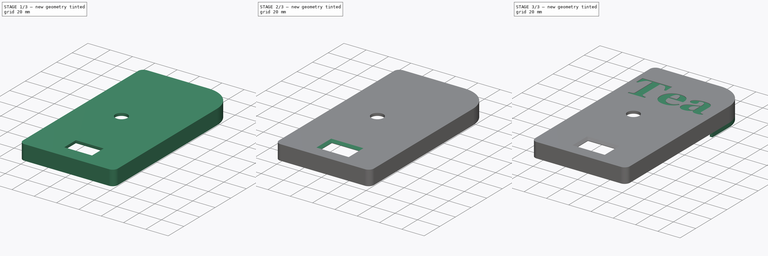
[diagram: build sequence overview — one tinted view per stage of 3, left to right]
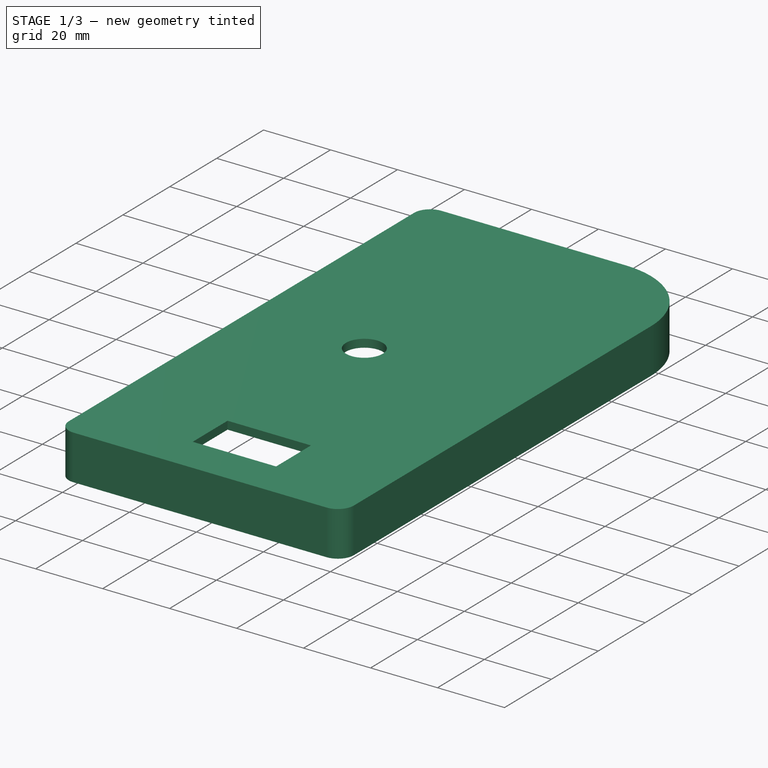
[diagram: stage 1 of 3 — iso view after this stage's code; geometry added in this stage tinted green]
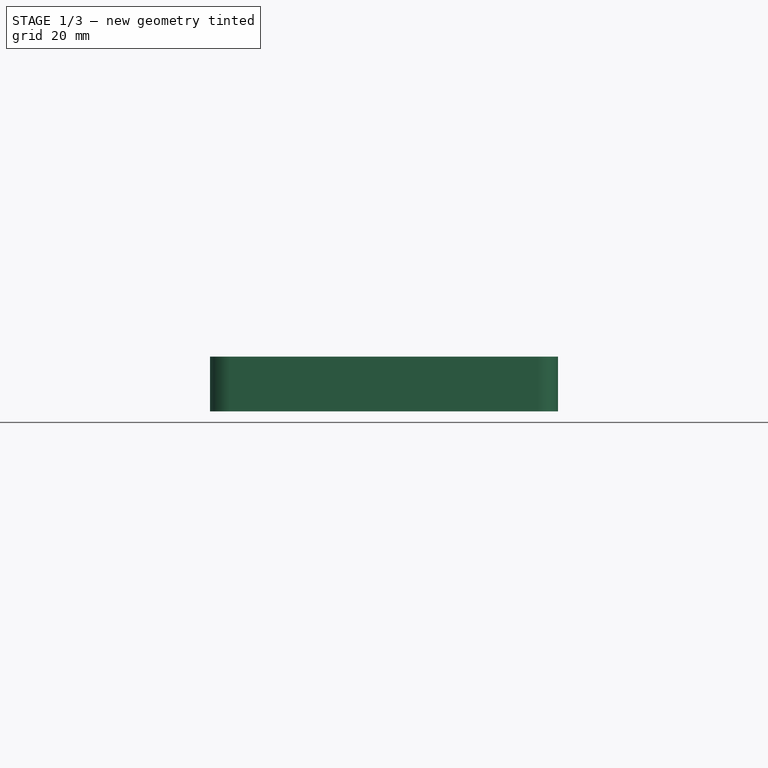
[diagram: stage 1 of 3 — front view after this stage's code; geometry added in this stage tinted green]
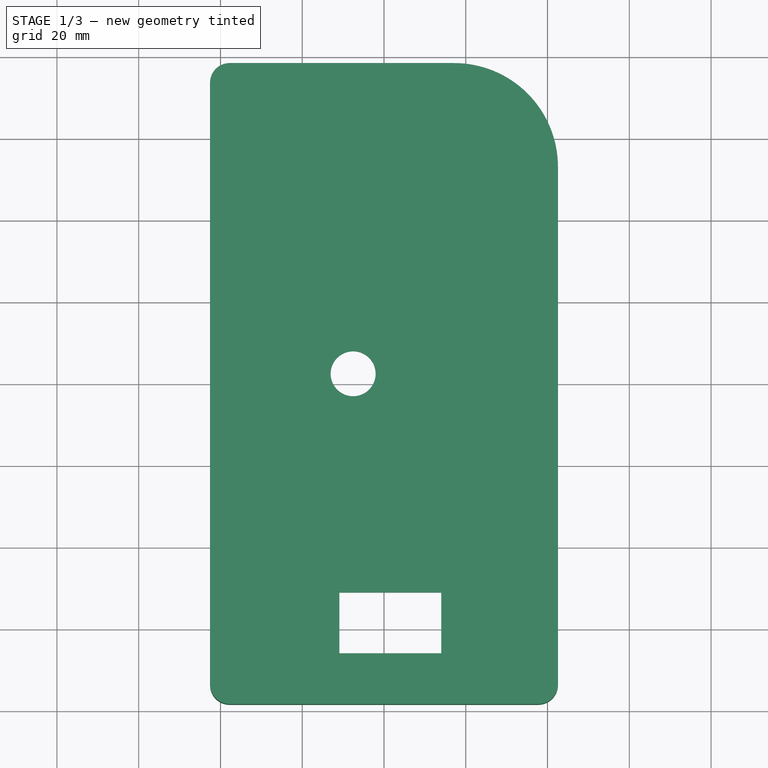
[diagram: stage 1 of 3 — top view after this stage's code; geometry added in this stage tinted green]
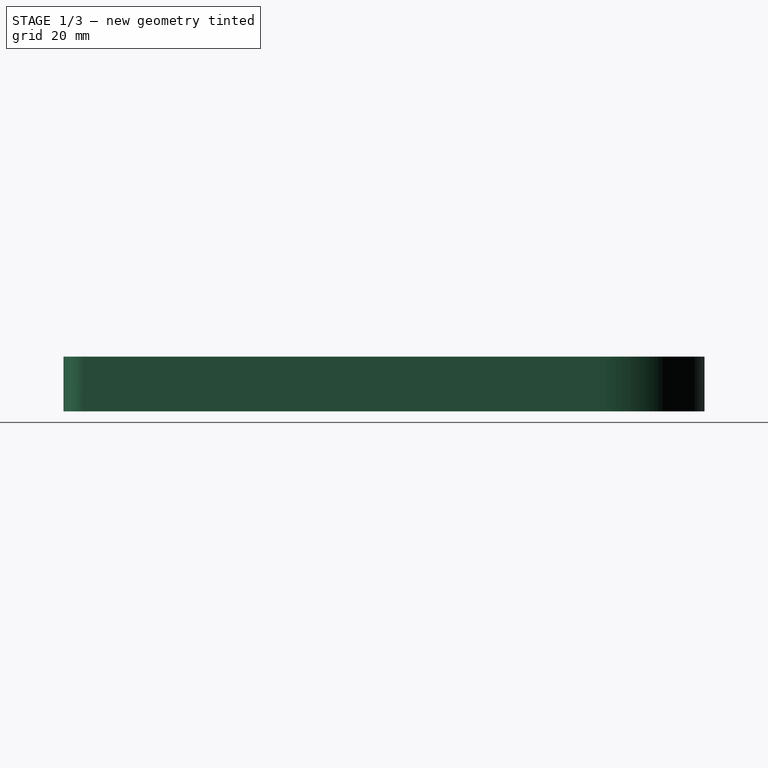
[diagram: stage 1 of 3 — right view after this stage's code; geometry added in this stage tinted green]
FCSTD DOCUMENT  (FreeCAD 0.19R24291 (Git))
Label: Front
License: All rights reserved
LicenseURL: http://en.wikipedia.org/wiki/All_rights_reserved
objects: Sketcher::SketchObject×3, PartDesign::Pad×3, PartDesign::CoordinateSystem×2, PartDesign::Chamfer×1, Part::Part2DObjectPython×1, PartDesign::Pocket×1, PartDesign::Body×1
note: 17 computed .brp shape members not serialized (recipe doc carries the construction recipe); baked Part::Feature solids carry a one-line shape summary decoded from their .brp
EXTERNAL_REF file=data.FCStd obj=Spreadsheet

FEATURE [PartDesign::CoordinateSystem] LCS_0
  AttacherType = Attacher::AttachEngine3D
  MapMode = 2
  Support = -> [X_Axis]
FEATURE [Sketcher::SketchObject] Sketch  label="Sketch_front"
  FullyConstrained = true
  MapMode = 5
  Support = -> [XY_Plane]
  expr: Constraints[26] = data#<<data>>.OutsideWidth
  expr: Constraints[57] = data#<<data>>.WallThickness + data#<<data>>.LCDMountOffsetY
  expr: Constraints[10] = data#<<data>>.OutsideCornerRadius
  expr: Constraints[56] = data#<<data>>.LCDMountOffset
  expr: Constraints[25] = data#<<data>>.OutsideLength
  expr: Constraints[50] = data#<<data>>.LCDMountInsideDiameter
  expr: Constraints[60] = data#<<data>>.LCDViewLength
  expr: Constraints[65] = data#<<data>>.KnobShaftOffsetY
  expr: Constraints[64] = data#<<data>>.KnobShaftOffsetX
  expr: Constraints[54] = data#<<data>>.LCDWidth
  expr: Constraints[11] = data#<<data>>.OutsideRadius
  expr: Constraints[63] = data#<<data>>.KnobHoleDiameter
  expr: Constraints[53] = data#<<data>>.LCDLength
  expr: Constraints[55] = data#<<data>>.LCDMountOffset
  expr: Constraints[59] = data#<<data>>.LCDViewWidth
  expr: Constraints[58] = data#<<data>>.WallThickness + data#<<data>>.LCDMountOffsetX
  sketch-geometry (22):
    g0: ArcOfCircle CenterX=-37.75 CenterY=73.6 CenterZ=0 NormalX=0 NormalY=0 NormalZ=1 AngleXU=0 Radius=4.8 StartAngle=1.5708 EndAngle=3.14159
    g1: ArcOfCircle CenterX=17.15 CenterY=53 CenterZ=0 NormalX=0 NormalY=0 NormalZ=1 AngleXU=0 Radius=25.4 StartAngle=0 EndAngle=1.5708
    g2: ArcOfCircle CenterX=37.75 CenterY=-73.6 CenterZ=0 NormalX=0 NormalY=0 NormalZ=1 AngleXU=0 Radius=4.8 StartAngle=4.71239 EndAngle=6.28319
    g3: ArcOfCircle CenterX=-37.75 CenterY=-73.6 CenterZ=0 NormalX=0 NormalY=0 NormalZ=1 AngleXU=0 Radius=4.8 StartAngle=3.14159 EndAngle=4.71239
    g4: LineSegment StartX=-42.55 StartY=73.6 StartZ=0 EndX=-42.55 EndY=-73.6 EndZ=0
    g5: LineSegment StartX=-37.75 StartY=-78.4 StartZ=0 EndX=37.75 EndY=-78.4 EndZ=0
    g6: LineSegment StartX=42.55 StartY=-73.6 StartZ=0 EndX=42.55 EndY=53 EndZ=0
    g7: LineSegment StartX=17.15 StartY=78.4 StartZ=0 EndX=-37.75 EndY=78.4 EndZ=0
    g8: LineSegment StartX=-10.91 StartY=-51.14 StartZ=0 EndX=14 EndY=-51.14 EndZ=0
    g9: LineSegment StartX=14 StartY=-51.14 StartZ=0 EndX=14 EndY=-66 EndZ=0
    g10: LineSegment StartX=14 StartY=-66 StartZ=0 EndX=-10.91 EndY=-66 EndZ=0
    g11: LineSegment StartX=-10.91 StartY=-66 StartZ=0 EndX=-10.91 EndY=-51.14 EndZ=0
    g12: LineSegment StartX=-20 StartY=-40 StartZ=0 EndX=15 EndY=-40 EndZ=0
    g13: LineSegment StartX=15 StartY=-40 StartZ=0 EndX=15 EndY=-72 EndZ=0
    g14: LineSegment StartX=15 StartY=-72 StartZ=0 EndX=-20 EndY=-72 EndZ=0
    g15: LineSegment StartX=-20 StartY=-72 StartZ=0 EndX=-20 EndY=-40 EndZ=0
    g16: Circle CenterX=-17.5 CenterY=-42.5 CenterZ=0 NormalX=0 NormalY=0 NormalZ=1 AngleXU=0 Radius=1.4
    g17: Circle CenterX=12.5 CenterY=-42.5 CenterZ=0 NormalX=0 NormalY=0 NormalZ=1 AngleXU=0 Radius=1.4
    g18: Circle CenterX=12.5 CenterY=-69.5 CenterZ=0 NormalX=0 NormalY=0 NormalZ=1 AngleXU=0 Radius=1.4
    g19: Circle CenterX=-17.5 CenterY=-69.5 CenterZ=0 NormalX=0 NormalY=0 NormalZ=1 AngleXU=0 Radius=1.4
    g20: GeomPoint X=-2.5 Y=-56 Z=0
    g21: Circle CenterX=-7.55 CenterY=2.4 CenterZ=0 NormalX=0 NormalY=0 NormalZ=1 AngleXU=0 Radius=5.5
  constraints (66):
    c: Vertical(g0,g0)
    c: Vertical(g3,g3)
    c: Vertical(g2,g2)
    c: Vertical(g1,g1)
    c: Horizontal(g0,g0)
    c: Horizontal(g1,g1)
    c: Horizontal(g2,g2)
    c: Horizontal(g3,g3)
    c: Equal(g0,g3)
    c: Equal(g3,g2)
    c: Radius(g2) = 4.8
    c: Radius(g1) = 25.4
    c: Vertical(g1,g2)
    c: Vertical(g0,g3)
    c: Horizontal(g0,g1)
    c: Horizontal(g2,g3)
    c: Symmetric(g0,g2,g-1)
    c: Coincident(g4,g0)
    c: Coincident(g4,g3)
    c: Coincident(g5,g3)
    c: Coincident(g5,g2)
    c: Coincident(g6,g2)
    c: Coincident(g6,g1)
    c: Coincident(g7,g1)
    c: Coincident(g7,g0)
    c: DistanceY(g3,g0) = 156.8
    c: DistanceX(g3,g2) = 85.1
    c: Coincident(g8,g9)
    c: Coincident(g9,g10)
    c: Coincident(g10,g11)
    c: Coincident(g11,g8)
    c: Horizontal(g8)
    c: Horizontal(g10)
    c: Vertical(g9)
    c: Vertical(g11)
    c: Coincident(g12,g13)
    c: Coincident(g13,g14)
    c: Coincident(g14,g15)
    c: Coincident(g15,g12)
    c: Horizontal(g12)
    c: Horizontal(g14)
    c: Vertical(g13)
    c: Vertical(g15)
    c: Equal(g16,g17)
    c: Equal(g17,g18)
    c: Equal(g18,g19)
    c: Vertical(g16,g19)
    c: Vertical(g17,g18)
    c: Horizontal(g19,g18)
    c: Horizontal(g16,g17)
    c: Diameter(g17) = 2.8
    c: Symmetric(g12,g13,g20)
    c: Symmetric(g19,g17,g20)
    c: DistanceY(g15,g15) = 32
    c: DistanceX(g12,g12) = 35
    c: DistanceY(g16,g12) = 2.5
    c: DistanceX(g12,g16) = 2.5
    c: DistanceY(g2,g13) = 6.4
    c: DistanceX(g13,g2) = 27.55
    c: DistanceX(g8,g8) = 24.91
    c: DistanceY(g11,g11) = 14.86
    c: DistanceX(g9,g13) = 1
    c: DistanceY(g13,g9) = 6
    c: Diameter(g21) = 11
    c: DistanceX(g0,g21) = 35
    c: DistanceY(g21,g1) = 76
FEATURE [PartDesign::Pad] Pad
  Direction = (1,1,1)
  Length = 2.4
  Length2 = 100
  Profile = -> Sketch
  Type = 0
  expr: Length = data#<<data>>.WallThickness
FEATURE [Sketcher::SketchObject] Sketch001
  FullyConstrained = true
  MapMode = 5
  Support = -> [XY_Plane]
  expr: Constraints[73] = data#<<data>>.PCBLength
  expr: Constraints[75] = data#<<data>>.PCBGear02Y
  expr: Constraints[47] = data#<<data>>.OutsideLength
  expr: Constraints[63] = data#<<data>>.PowerJackWidth
  expr: Constraints[74] = data#<<data>>.PCBGear02X
  expr: Constraints[76] = data#<<data>>.PCBPowerJackY
  expr: Constraints[72] = data#<<data>>.PCBWidth
  expr: Constraints[34] = data#<<data>>.OutsideRadius
  expr: Constraints[33] = data#<<data>>.OutsideCornerRadius
  expr: Constraints[16] = data#<<data>>.MiddleRadius
  expr: Constraints[48] = data#<<data>>.OutsideWidth
  expr: Constraints[15] = data#<<data>>.MiddleCornerRadius
  sketch-geometry (24):
    g0: ArcOfCircle CenterX=-37.75 CenterY=73.6 CenterZ=0 NormalX=0 NormalY=0 NormalZ=1 AngleXU=0 Radius=3.6 StartAngle=1.5708 EndAngle=3.14159
    g1: ArcOfCircle CenterX=17.15 CenterY=53 CenterZ=0 NormalX=0 NormalY=0 NormalZ=1 AngleXU=0 Radius=24.2 StartAngle=0 EndAngle=1.5708
    g2: ArcOfCircle CenterX=37.75 CenterY=-73.6 CenterZ=0 NormalX=0 NormalY=0 NormalZ=1 AngleXU=0 Radius=3.6 StartAngle=4.71239 EndAngle=6.28319
    g3: ArcOfCircle CenterX=-37.75 CenterY=-73.6 CenterZ=0 NormalX=0 NormalY=0 NormalZ=1 AngleXU=0 Radius=3.6 StartAngle=3.14159 EndAngle=4.71239
    g4: LineSegment StartX=-37.75 StartY=77.2 StartZ=0 EndX=17.15 EndY=77.2 EndZ=0
    g5: LineSegment StartX=41.35 StartY=53 StartZ=0 EndX=41.35 EndY=-73.6 EndZ=0
    g6: LineSegment StartX=37.75 StartY=-77.2 StartZ=0 EndX=-37.75 EndY=-77.2 EndZ=0
    g7: ArcOfCircle CenterX=-37.75 CenterY=73.6 CenterZ=0 NormalX=0 NormalY=0 NormalZ=1 AngleXU=0 Radius=4.8 StartAngle=1.5708 EndAngle=3.14159
    g8: ArcOfCircle CenterX=17.15 CenterY=53 CenterZ=0 NormalX=0 NormalY=0 NormalZ=1 AngleXU=0 Radius=25.4 StartAngle=0 EndAngle=1.5708
    g9: ArcOfCircle CenterX=37.75 CenterY=-73.6 CenterZ=0 NormalX=0 NormalY=0 NormalZ=1 AngleXU=0 Radius=4.8 StartAngle=4.71239 EndAngle=6.28319
    g10: ArcOfCircle CenterX=-37.75 CenterY=-73.6 CenterZ=0 NormalX=0 NormalY=0 NormalZ=1 AngleXU=0 Radius=4.8 StartAngle=3.14159 EndAngle=4.71239
    g11: LineSegment StartX=-37.75 StartY=-78.4 StartZ=0 EndX=37.75 EndY=-78.4 EndZ=0
    g12: LineSegment StartX=42.55 StartY=53 StartZ=0 EndX=42.55 EndY=-73.6 EndZ=0
    g13: LineSegment StartX=17.15 StartY=78.4 StartZ=0 EndX=-37.75 EndY=78.4 EndZ=0
    g14: LineSegment StartX=-42.55 StartY=73.6 StartZ=0 EndX=-42.55 EndY=-10.05 EndZ=0
    g15: LineSegment StartX=-41.35 StartY=73.6 StartZ=0 EndX=-41.35 EndY=-10.05 EndZ=0
    g16: LineSegment StartX=-42.55 StartY=-73.6 StartZ=0 EndX=-42.55 EndY=-19.55 EndZ=0
    g17: LineSegment StartX=-41.35 StartY=-73.6 StartZ=0 EndX=-41.35 EndY=-19.55 EndZ=0
    g18: LineSegment StartX=-42.55 StartY=-10.05 StartZ=0 EndX=-41.35 EndY=-10.05 EndZ=0
    g19: LineSegment StartX=-42.55 StartY=-19.55 StartZ=0 EndX=-41.35 EndY=-19.55 EndZ=0
    g20: LineSegment StartX=-39.15 StartY=74.7 StartZ=0 EndX=20.85 EndY=74.7 EndZ=0
    g21: LineSegment StartX=20.85 StartY=74.7 StartZ=0 EndX=20.85 EndY=-25.3 EndZ=0
    g22: LineSegment StartX=20.85 StartY=-25.3 StartZ=0 EndX=-39.15 EndY=-25.3 EndZ=0
    g23: LineSegment StartX=-39.15 StartY=-25.3 StartZ=0 EndX=-39.15 EndY=74.7 EndZ=0
  constraints (77):
    c: Vertical(g0,g0)
    c: Vertical(g3,g3)
    c: Vertical(g1,g1)
    c: Vertical(g2,g2)
    c: Horizontal(g0,g0)
    c: Horizontal(g1,g1)
    c: Horizontal(g2,g2)
    c: Horizontal(g3,g3)
    c: Vertical(g0,g3)
    c: Vertical(g1,g2)
    c: Horizontal(g0,g1)
    c: Horizontal(g3,g2)
    c: Equal(g0,g3)
    c: Equal(g3,g2)
    c: Symmetric(g0,g2,g-1)
    c: Radius(g2) = 3.6
    c: Radius(g1) = 24.2
    c: Coincident(g4,g0)
    c: Coincident(g4,g1)
    c: Coincident(g5,g1)
    c: Coincident(g5,g2)
    c: Coincident(g6,g2)
    c: Coincident(g6,g3)
    c: Vertical(g7,g7)
    c: Vertical(g10,g10)
    c: Vertical(g9,g9)
    c: Vertical(g8,g8)
    c: Horizontal(g7,g7)
    c: Horizontal(g8,g8)
    c: Horizontal(g9,g9)
    c: Horizontal(g10,g10)
    c: Equal(g7,g10)
    c: Equal(g10,g9)
    c: Radius(g10) = 4.8
    c: Radius(g8) = 25.4
    c: Vertical(g7,g10)
    c: Vertical(g9,g8)
    c: Horizontal(g7,g8)
    c: Horizontal(g9,g10)
    c: Coincident(g7,g0)
    c: Coincident(g9,g2)
    c: Coincident(g11,g10)
    c: Coincident(g11,g9)
    c: Coincident(g12,g8)
    c: Coincident(g12,g9)
    c: Coincident(g13,g8)
    c: Coincident(g13,g7)
    c: DistanceY(g10,g7) = 156.8
    c: DistanceX(g7,g8) = 85.1
    c: Coincident(g14,g7)
    c: Vertical(g14)
    c: Coincident(g15,g0)
    c: Vertical(g15)
    c: Coincident(g16,g10)
    c: Vertical(g16)
    c: Coincident(g17,g3)
    c: Vertical(g17)
    c: Horizontal(g15,g14)
    c: Horizontal(g16,g17)
    c: Coincident(g18,g14)
    c: Coincident(g18,g15)
    c: Coincident(g19,g16)
    c: Coincident(g19,g17)
    c: DistanceY(g16,g14) = 9.5
    c: Coincident(g20,g21)
    c: Coincident(g21,g22)
    c: Coincident(g22,g23)
    c: Coincident(g23,g20)
    c: Horizontal(g20)
    c: Horizontal(g22)
    c: Vertical(g21)
    c: Vertical(g23)
    c: DistanceX(g20,g20) = 60
    c: DistanceY(g21,g21) = 100
    c: DistanceX(g1,g20) = 3.7
    c: DistanceY(g1,g20) = 21.7
    c: DistanceY(g22,g16) = 5.75
FEATURE [PartDesign::Pad] Pad001
  BaseFeature = -> Pad
  Direction = (1,1,1)
  Length = 11
  Length2 = 100
  Profile = -> Sketch001
  Reversed = true
  Type = 0
  expr: Length = data#<<data>>.Wall3Height
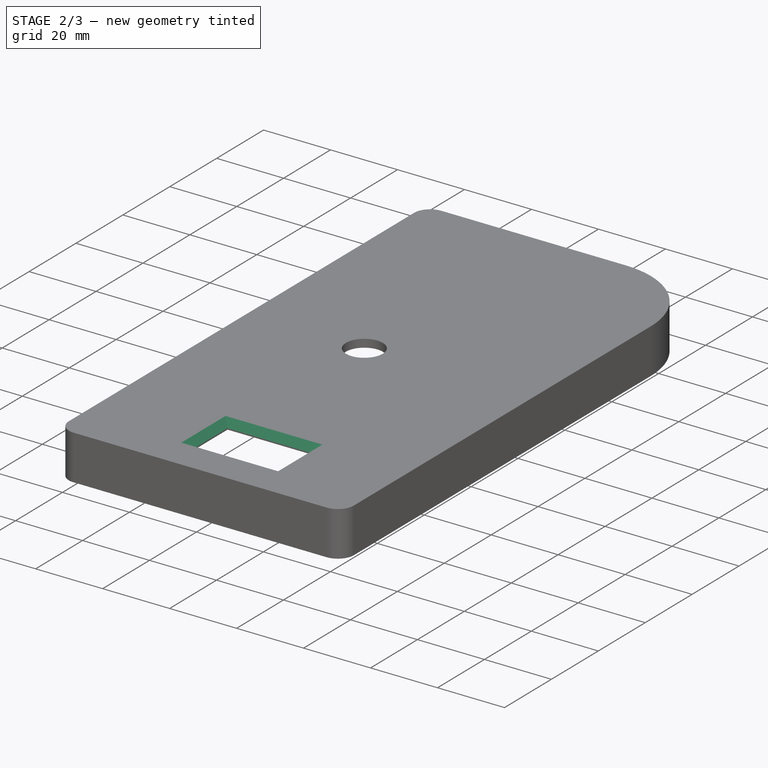
[diagram: stage 2 of 3 — iso view after this stage's code; geometry added in this stage tinted green]
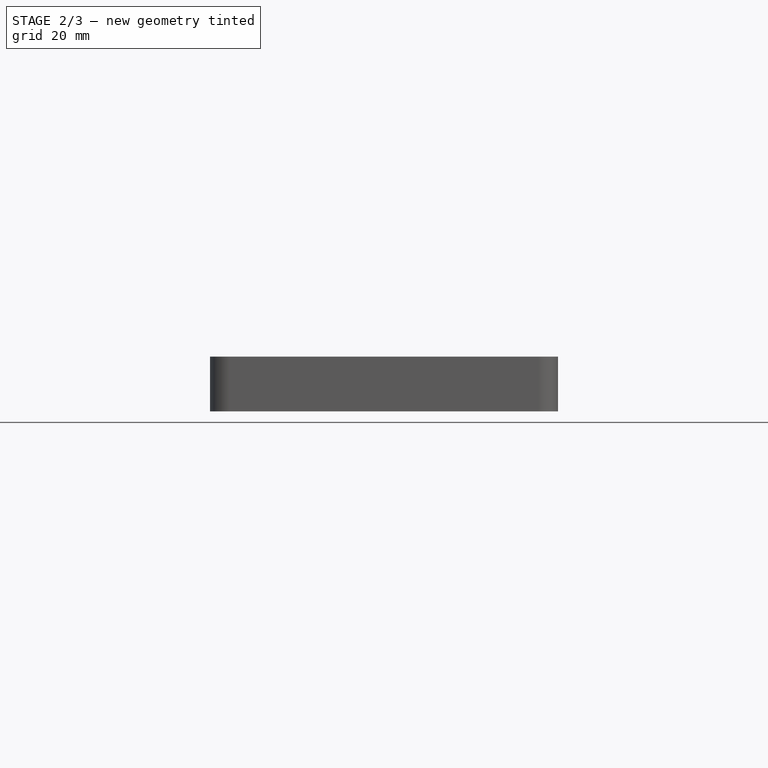
[diagram: stage 2 of 3 — front view after this stage's code; geometry added in this stage tinted green]
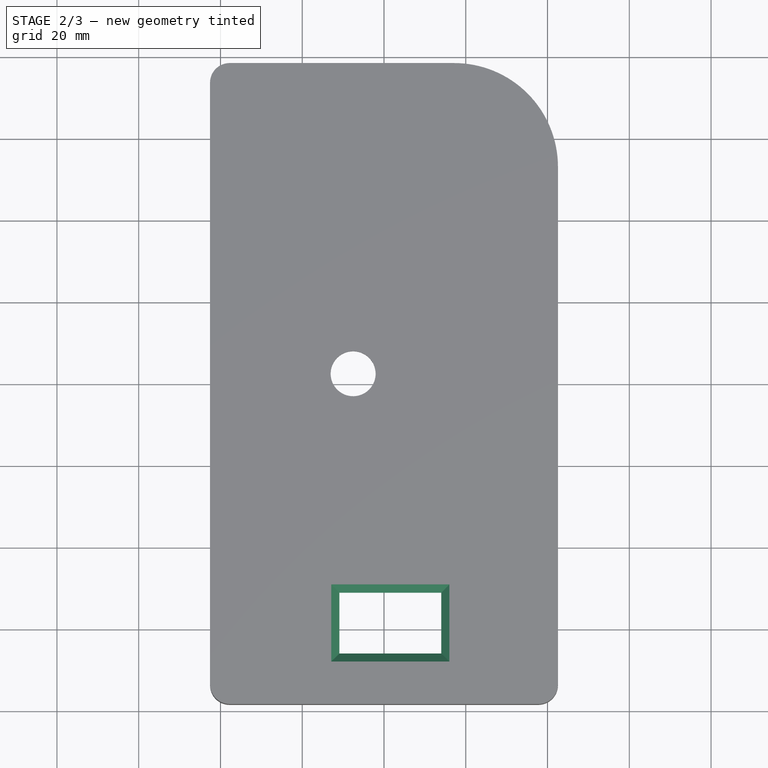
[diagram: stage 2 of 3 — top view after this stage's code; geometry added in this stage tinted green]
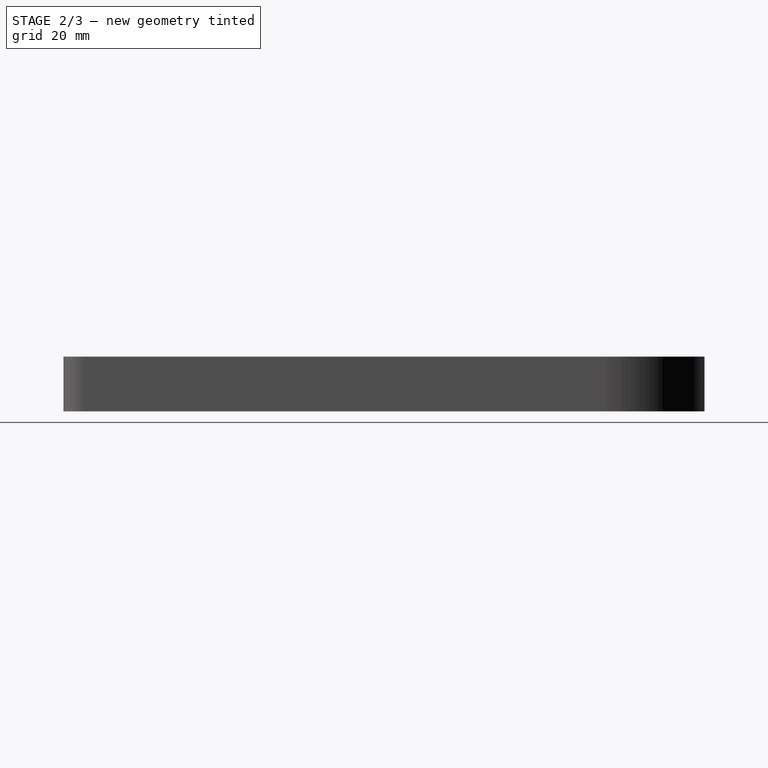
[diagram: stage 2 of 3 — right view after this stage's code; geometry added in this stage tinted green]
FEATURE [PartDesign::Chamfer] Chamfer
  Angle = 42
  Base = -> Pad001 [Edge22,Edge21,Edge24,Edge23]
  BaseFeature = -> Pad001
  ChamferType = 0
  FlipDirection = false
  Size = 2
  Size2 = 2
  SupportTransform = false
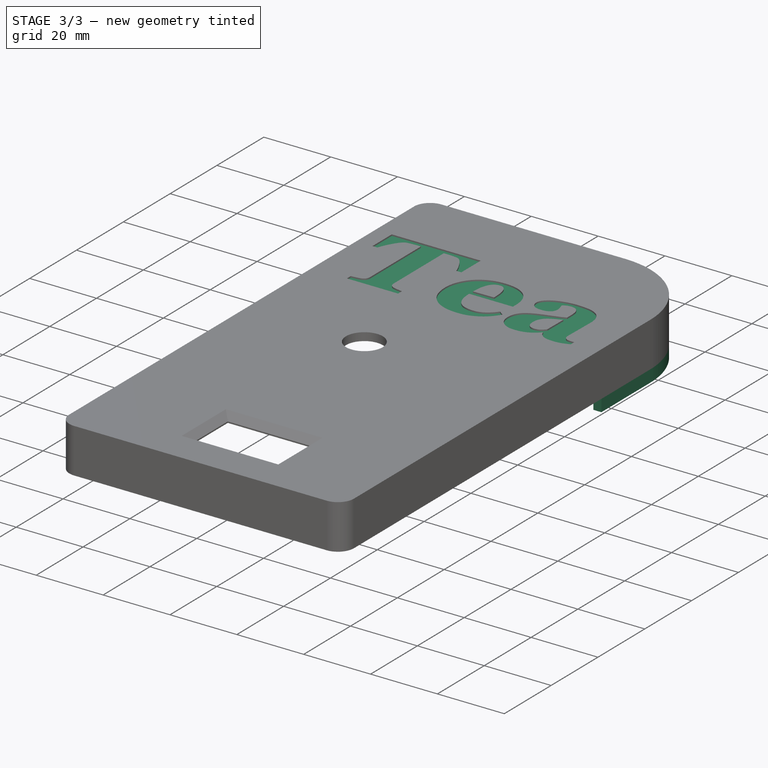
[diagram: stage 3 of 3 — iso view after this stage's code; geometry added in this stage tinted green]
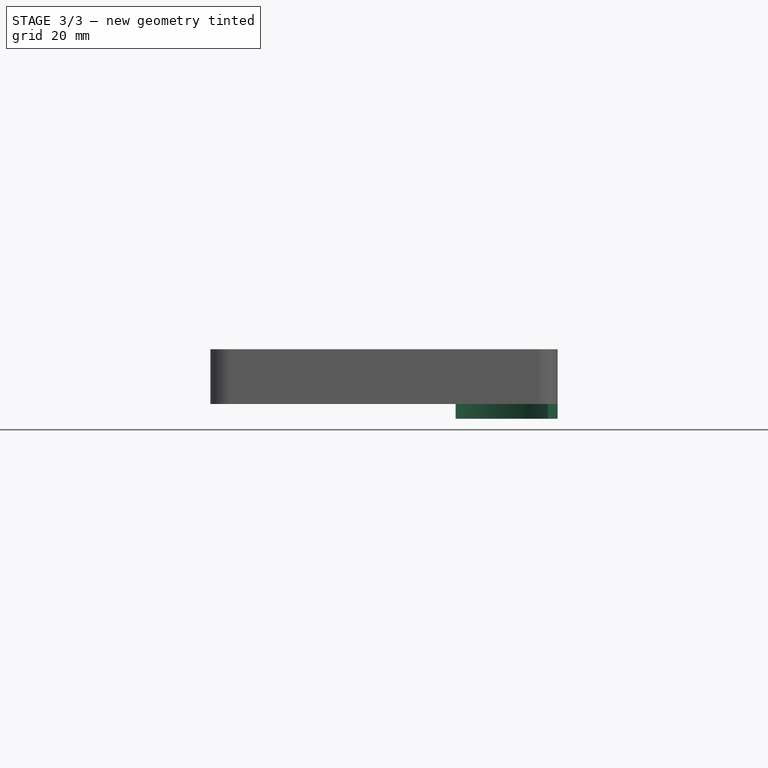
[diagram: stage 3 of 3 — front view after this stage's code; geometry added in this stage tinted green]
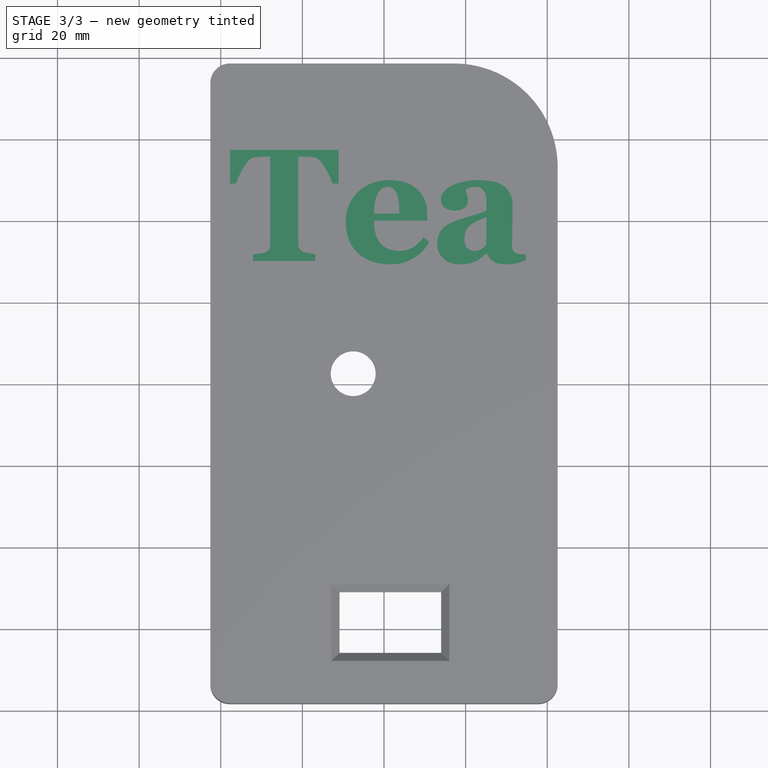
[diagram: stage 3 of 3 — top view after this stage's code; geometry added in this stage tinted green]
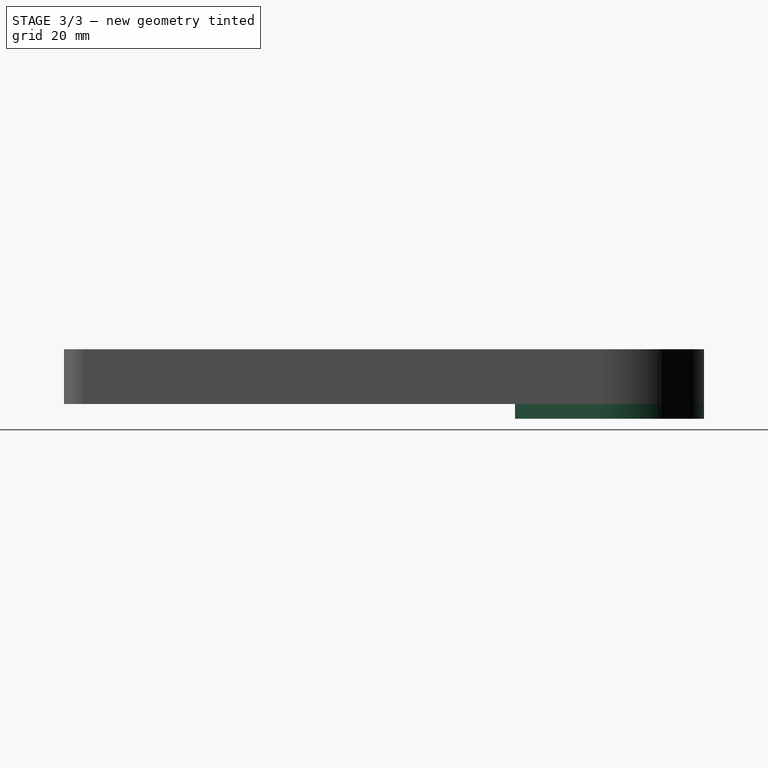
[diagram: stage 3 of 3 — right view after this stage's code; geometry added in this stage tinted green]
FEATURE [Sketcher::SketchObject] Sketch002
  FullyConstrained = true
  MapMode = 5
  Support = -> [XY_Plane]
  expr: Constraints[22] = data#<<data>>.InsideRadius
  expr: Constraints[7] = data#<<data>>.OutsideLength
  expr: Constraints[13] = data#<<data>>.OutsideLowAngle
  expr: Constraints[10] = data#<<data>>.OutsideRadius
  expr: Constraints[8] = data#<<data>>.OutsideWidth
  sketch-geometry (14):
    g0: LineSegment StartX=-42.55 StartY=78.4 StartZ=0 EndX=-42.55 EndY=-78.4 EndZ=0
    g1: LineSegment StartX=-42.55 StartY=-78.4 StartZ=0 EndX=42.55 EndY=-78.4 EndZ=0
    g2: LineSegment StartX=-42.55 StartY=78.4 StartZ=0 EndX=17.15 EndY=78.4 EndZ=0
    g3: ArcOfCircle CenterX=17.15 CenterY=53 CenterZ=0 NormalX=0 NormalY=0 NormalZ=1 AngleXU=0 Radius=25.4 StartAngle=0 EndAngle=1.55505
    g4: LineSegment StartX=17.15 StartY=53 StartZ=0 EndX=42.55 EndY=31.6869 EndZ=0
    g5: LineSegment StartX=42.55 StartY=53 StartZ=0 EndX=42.55 EndY=32.0869 EndZ=0
    g6: LineSegment StartX=-40.15 StartY=76 StartZ=0 EndX=17.15 EndY=76 EndZ=0
    g7: LineSegment StartX=-40.15 StartY=76 StartZ=0 EndX=-40.15 EndY=-76 EndZ=0
    g8: LineSegment StartX=-40.15 StartY=-76 StartZ=0 EndX=40.15 EndY=-76 EndZ=0
    g9: ArcOfCircle CenterX=17.15 CenterY=53 CenterZ=0 NormalX=0 NormalY=0 NormalZ=1 AngleXU=0 Radius=23 StartAngle=0 EndAngle=1.5534
    g10: LineSegment StartX=40.15 StartY=53 StartZ=0 EndX=40.15 EndY=32.0869 EndZ=0
    g11: LineSegment StartX=40.15 StartY=31.6869 StartZ=0 EndX=42.55 EndY=31.6869 EndZ=0
    g12: LineSegment StartX=17.55 StartY=78.3969 StartZ=0 EndX=17.55 EndY=75.9965 EndZ=0
    g13: LineSegment StartX=40.15 StartY=32.0869 StartZ=0 EndX=42.55 EndY=32.0869 EndZ=0
  constraints (43):
    c: Vertical(g0)
    c: Coincident(g1,g0)
    c: Horizontal(g1)
    c: Coincident(g2,g0)
    c: Horizontal(g2)
    c: Horizontal(g3,g3)
    c: Vertical(g3,g1)
    c: DistanceY(g0,g0) = 156.8
    c: DistanceX(g1,g1) = 85.1
    c: Symmetric(g0,g1,g-1)
    c: Radius(g3) = 25.4
    c: Coincident(g4,g3)
    c: Vertical(g3,g4)
    c: Angle(g-2,g4) = 0.872665
    c: Coincident(g5,g3)
    c: Horizontal(g6)
    c: Coincident(g7,g6)
    c: Vertical(g7)
    c: Coincident(g8,g7)
    c: Horizontal(g8)
    c: Symmetric(g6,g8,g-1)
    c: Horizontal(g9,g9)
    c: Radius(g9) = 23
    c: Coincident(g9,g3)
    c: Vertical(g9,g8)
    c: Coincident(g10,g9)
    c: Coincident(g11,g4)
    c: Vertical(g10)
    c: Vertical(g12)
    c: DistanceX(g2,g12) = 0.4
    c: Coincident(g3,g12)
    c: Coincident(g9,g12)
    c: PointOnObject(g2,g3)
    c: PointOnObject(g6,g9)
    c: Vertical(g3,g6)
    c: Vertical(g6,g2)
    c: Horizontal(g13)
    c: DistanceY(g4,g13) = 0.4
    c: Coincident(g10,g13)
    c: Coincident(g5,g13)
    c: Vertical(g5,g4)
    c: Vertical(g10,g11)
    c: Horizontal(g11)
FEATURE [PartDesign::Pad] Pad002
  BaseFeature = -> Chamfer
  Direction = (1,1,1)
  Length = 14.6
  Length2 = 100
  Profile = -> Sketch002
  Reversed = true
  Type = 0
  expr: Length = data#<<data>>.Wall3Height + data#<<data>>.PCBThickness + data#<<data>>.HallSensorGap
FEATURE [Part::Part2DObjectPython] ShapeString  # Draft 2D object (typed FeaturePython)
  FontFile = /System/Library/Fonts/Supplemental/Georgia Bold.ttf
  Placement = pos=(-38,30,2.4) rot=(0,0,1;0rad)
  Size = 30
  String = Tea
  Tracking = 0
  expr: .Placement.Base.z = data#<<data>>.WallThickness
FEATURE [PartDesign::Pocket] Pocket
  BaseFeature = -> Pad002
  Length = 0.4
  Length2 = 100
  Profile = -> ShapeString
  Type = 0
FEATURE [PartDesign::CoordinateSystem] LCS_back
  AttacherType = Attacher::AttachEngine3D
  MapMode = 1
  Placement = pos=(-41.35,-19.55,-11) rot=(0,0,1;0rad)
  Support = -> [Pocket]
FEATURE [PartDesign::Body] Body_front
  Group = -> [LCS_0,Sketch,Pad,Sketch001,Pad001,Chamfer,LCS_back,Sketch002,Pad002,ShapeString,Pocket]
  Origin = -> Origin
  Tip = -> Pocket
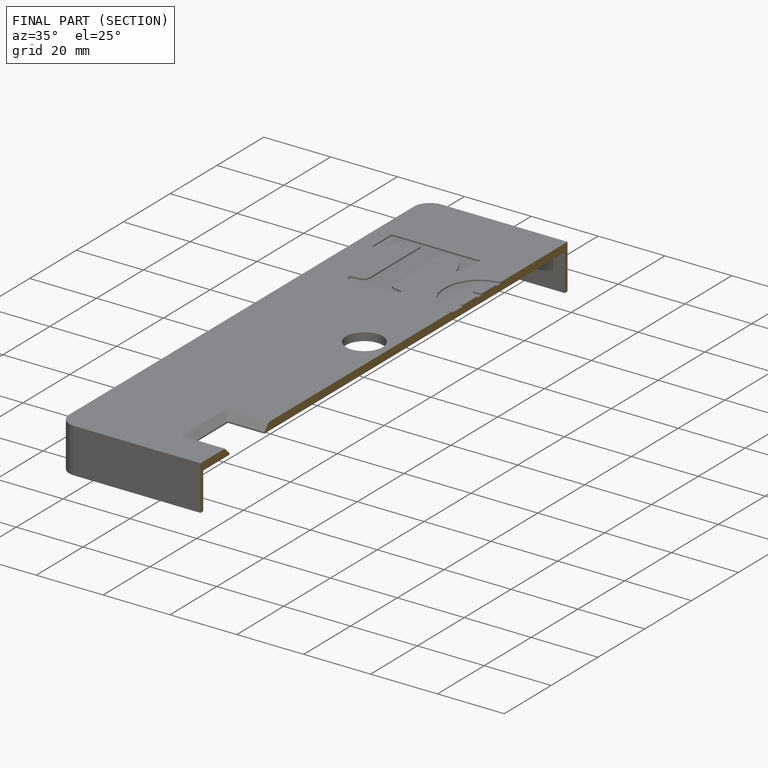
[diagram: finished part — half-section view (interior)]
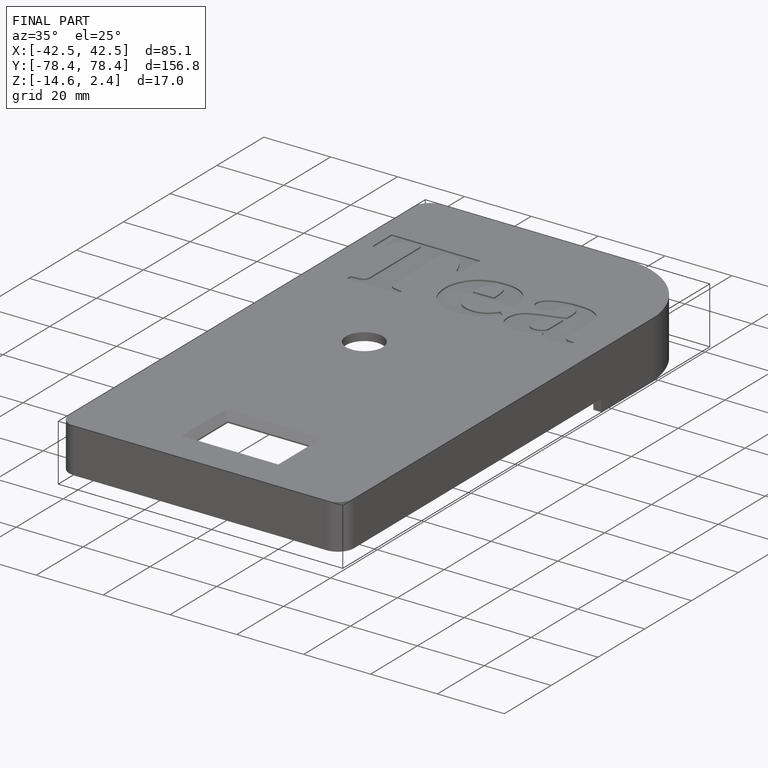
[diagram: finished part — iso view with bounding-box wireframe]
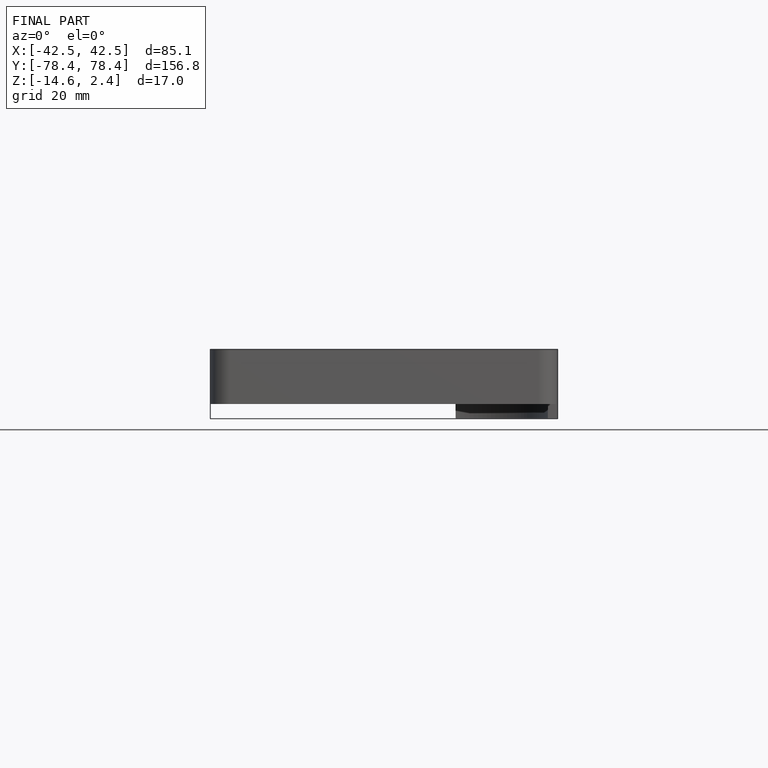
[diagram: finished part — front view with bounding-box wireframe]
